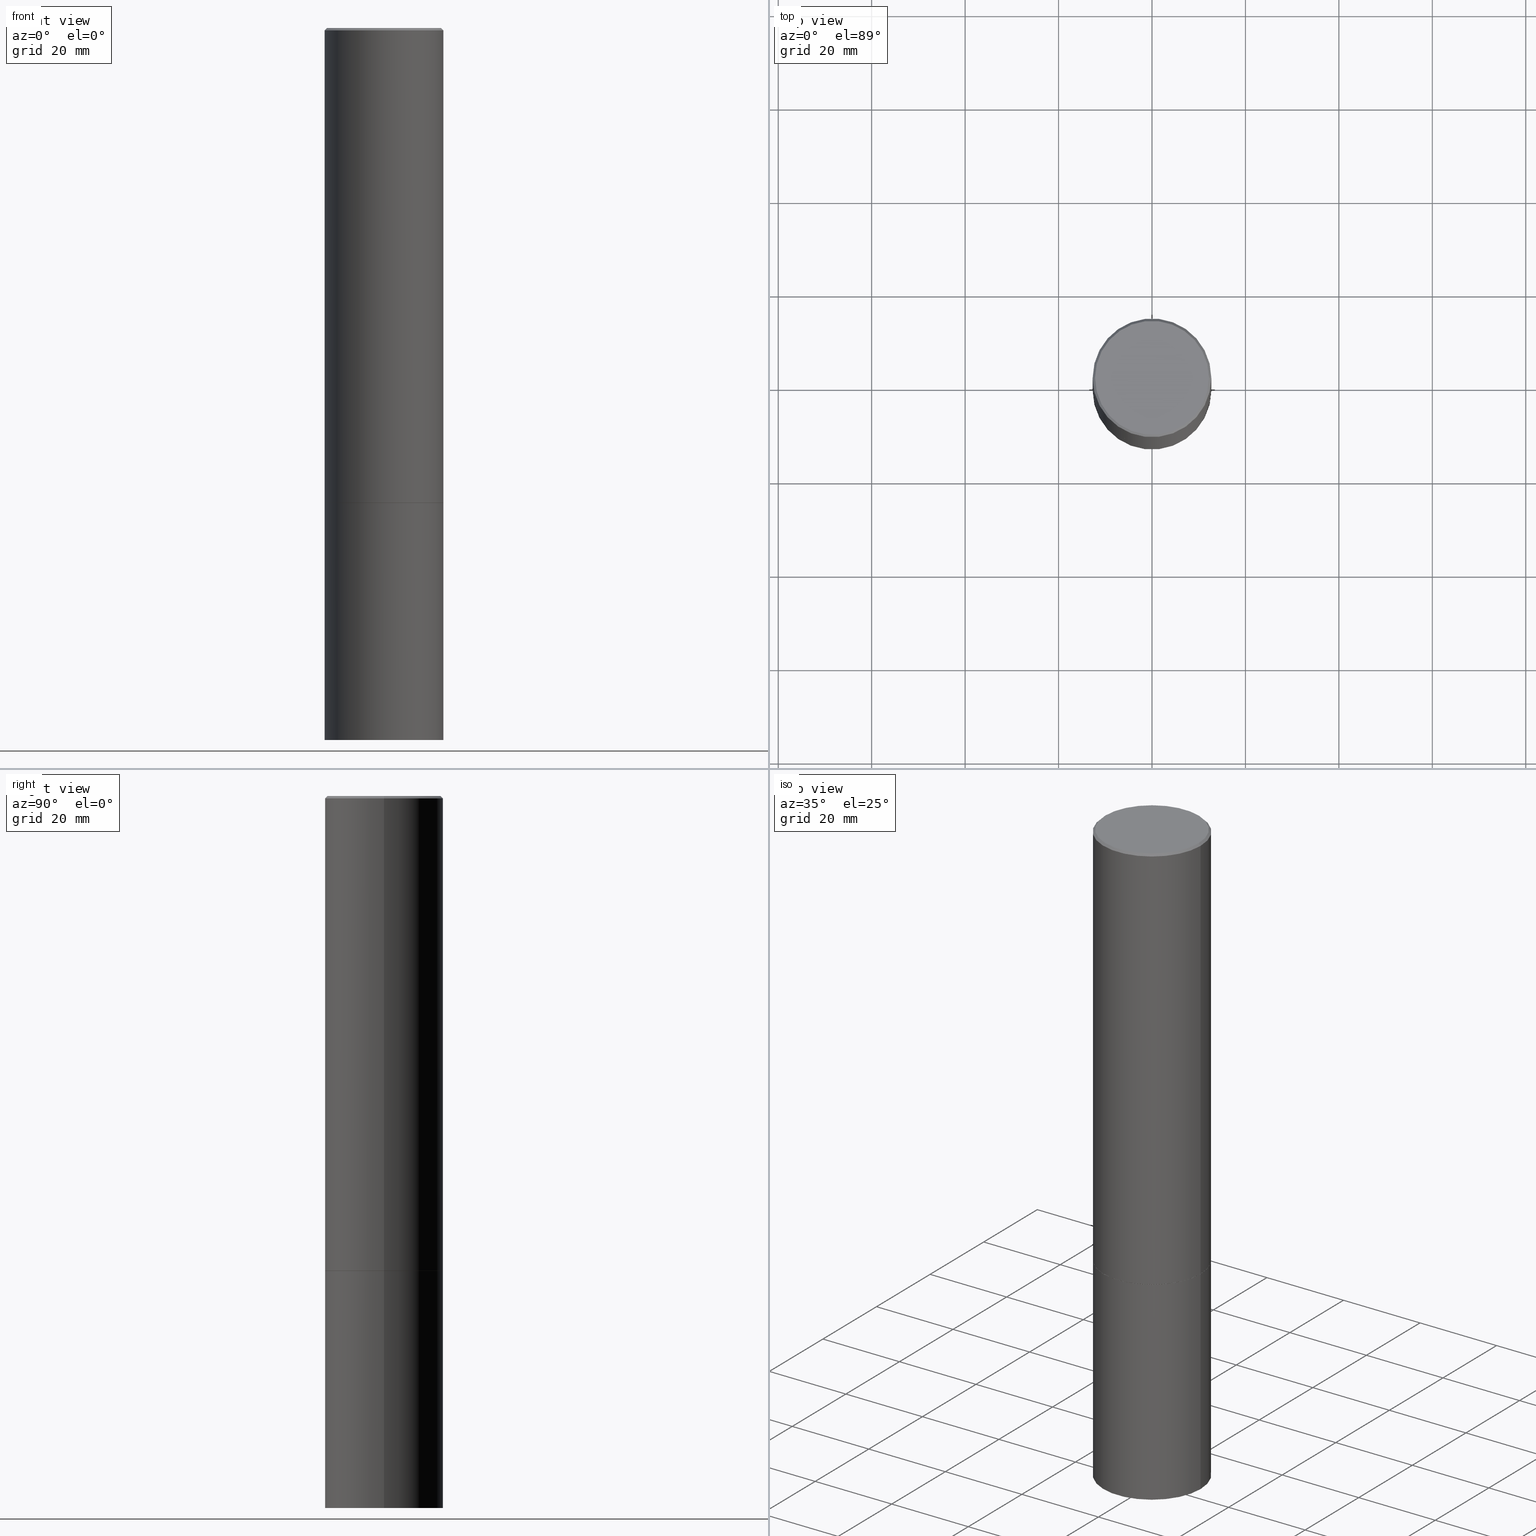
[diagram: canonical four-view strip — front | top / right | iso, engineering-drawing reading convention]
A machine part, canonical four-view strip (front | top / right | iso — engineering-drawing reading convention). The complete STEP part file that produces these views, byte-faithful:
ISO-10303-21;
HEADER;
FILE_DESCRIPTION (( 'STEP AP203' ),
    '1' );
FILE_NAME ('36626.STEP',
    '2024-02-27T19:51:38',
    ( '' ),
    ( '' ),
    'SwSTEP 2.0',
    'SolidWorks 2023',
    '' );
FILE_SCHEMA (( 'CONFIG_CONTROL_DESIGN' ));
ENDSEC;

DATA;
#1 = ORIENTED_EDGE ( 'NONE', *, *, #328, .T. ) ;
#2 = DIRECTION ( 'NONE',  ( 1.000000000000000000, -6.982962677686266711E-15, 0.000000000000000000 ) ) ;
#3 = AXIS2_PLACEMENT_3D ( 'NONE', #16, #9, #227 ) ;
#4 = CIRCLE ( 'NONE', #104, 0.4999999999999995004 ) ;
#5 = APPROVAL_PERSON_ORGANIZATION ( #350, #145, #232 ) ;
#6 = APPLICATION_PROTOCOL_DEFINITION ( 'international standard', 'config_control_design', 1994, #290 ) ;
#7 = CIRCLE ( 'NONE', #313, 0.5000000000000000000 ) ;
#8 = CARTESIAN_POINT ( 'NONE',  ( 0.000000000000000000, 0.000000000000000000, 0.000000000000000000 ) ) ;
#9 = DIRECTION ( 'NONE',  ( -2.445468806185136597E-29, 3.491481338843145583E-15, 1.000000000000000000 ) ) ;
#10 = PERSON_AND_ORGANIZATION_ROLE ( 'design_owner' ) ;
#11 = CARTESIAN_POINT ( 'NONE',  ( 9.781875224740547508E-29, -1.396592535537258391E-14, -4.000000000000000888 ) ) ;
#12 = DIRECTION ( 'NONE',  ( 1.000000000000000000, -6.982962677686266711E-15, 4.876036955247133888E-29 ) ) ;
#13 = EDGE_CURVE ( 'NONE', #52, #155, #196, .T. ) ;
#14 = PERSON_AND_ORGANIZATION ( #206, #296 ) ;
#15 = CARTESIAN_POINT ( 'NONE',  ( 0.4999999999999995004, -3.500078625662625924E-15, -0.02000000000000007327 ) ) ;
#16 = CARTESIAN_POINT ( 'NONE',  ( 4.890937612370290675E-31, -6.982962677686316261E-17, -0.02000000000000007327 ) ) ;
#17 = CLOSED_SHELL ( 'NONE', ( #94, #158, #49, #130 ) ) ;
#18 = EDGE_LOOP ( 'NONE', ( #76, #164 ) ) ;
#19 = CC_DESIGN_DATE_AND_TIME_ASSIGNMENT ( #93, #112, ( #211 ) ) ;
#20 = CYLINDRICAL_SURFACE ( 'NONE', #307, 0.5000000000000000000 ) ;
#21 = SECURITY_CLASSIFICATION_LEVEL ( 'unclassified' ) ;
#22 = COORDINATED_UNIVERSAL_TIME_OFFSET ( 5, 0, .BEHIND. ) ;
#23 = ADVANCED_FACE ( 'NONE', ( #285 ), #249, .T. ) ;
#24 = AXIS2_PLACEMENT_3D ( 'NONE', #192, #224, #81 ) ;
#25 = AXIS2_PLACEMENT_3D ( 'NONE', #231, #270, #87 ) ;
#26 = FACE_OUTER_BOUND ( 'NONE', #278, .T. ) ;
#27 = DIRECTION ( 'NONE',  ( 1.000000000000000000, -6.982962677686266711E-15, 0.000000000000000000 ) ) ;
#28 = CARTESIAN_POINT ( 'NONE',  ( 0.5000000000000000000, -2.444036937190200606E-14, -6.000000000000000888 ) ) ;
#29 = AXIS2_PLACEMENT_3D ( 'NONE', #168, #293, #108 ) ;
#30 = VERTEX_POINT ( 'NONE', #287 ) ;
#31 = VERTEX_POINT ( 'NONE', #129 ) ;
#32 = DIRECTION ( 'NONE',  ( -2.445468806185136877E-29, 3.491481338843145188E-15, 1.000000000000000000 ) ) ;
#33 = CC_DESIGN_PERSON_AND_ORGANIZATION_ASSIGNMENT ( #174, #299, ( #92 ) ) ;
#34 = LINE ( 'NONE', #132, #321 ) ;
#35 = CONICAL_SURFACE ( 'NONE', #29, 0.4999999999999995004, 0.7853981633974459475 ) ;
#36 = LENGTH_MEASURE_WITH_UNIT ( LENGTH_MEASURE( 0.02539999999999999897 ), #191 );
#37 = EDGE_CURVE ( 'NONE', #366, #30, #38, .T. ) ;
#38 = LINE ( 'NONE', #219, #147 ) ;
#39 = FACE_OUTER_BOUND ( 'NONE', #50, .T. ) ;
#40 = VECTOR ( 'NONE', #113, 39.37007874015748143 ) ;
#41 = ORIENTED_EDGE ( 'NONE', *, *, #277, .F. ) ;
#42 = ORIENTED_EDGE ( 'NONE', *, *, #264, .F. ) ;
#43 = FACE_OUTER_BOUND ( 'NONE', #220, .T. ) ;
#44 = DIRECTION ( 'NONE',  ( -2.445468806185136877E-29, 3.491481338843145188E-15, 1.000000000000000000 ) ) ;
#45 = CARTESIAN_POINT ( 'NONE',  ( 0.4989999999999999991, -1.745042373153803125E-14, -4.000000000000000888 ) ) ;
#46 = DIRECTION ( 'NONE',  ( -2.445468806185136597E-29, 3.491481338843145583E-15, 1.000000000000000000 ) ) ;
#47 = CC_DESIGN_APPROVAL ( #91, ( #173 ) ) ;
#48 = VECTOR ( 'NONE', #179, 39.37007874015748143 ) ;
#49 = ADVANCED_FACE ( 'NONE', ( #254 ), #223, .F. ) ;
#50 = EDGE_LOOP ( 'NONE', ( #70, #245 ) ) ;
#51 = EDGE_LOOP ( 'NONE', ( #365, #335, #303, #96 ) ) ;
#52 = VERTEX_POINT ( 'NONE', #135 ) ;
#53 = ORIENTED_EDGE ( 'NONE', *, *, #256, .F. ) ;
#54 = LOCAL_TIME ( 14, 51, 38.00000000000000000, #195 ) ;
#55 = DIRECTION ( 'NONE',  ( -2.445468806185136597E-29, 3.491481338843145583E-15, 1.000000000000000000 ) ) ;
#56 = FACE_OUTER_BOUND ( 'NONE', #61, .T. ) ;
#57 = CC_DESIGN_DATE_AND_TIME_ASSIGNMENT ( #65, #304, ( #173 ) ) ;
#58 = ORIENTED_EDGE ( 'NONE', *, *, #63, .T. ) ;
#59 = AXIS2_PLACEMENT_3D ( 'NONE', #118, #233, #353 ) ;
#60 = EDGE_CURVE ( 'NONE', #80, #30, #103, .T. ) ;
#61 = EDGE_LOOP ( 'NONE', ( #221, #77, #281, #316 ) ) ;
#62 = AXIS2_PLACEMENT_3D ( 'NONE', #160, #55, #295 ) ;
#63 = EDGE_CURVE ( 'NONE', #183, #288, #348, .T. ) ;
#64 = APPROVAL_STATUS ( 'not_yet_approved' ) ;
#65 = DATE_AND_TIME ( #273, #251 ) ;
#66 = LOCAL_TIME ( 14, 51, 38.00000000000000000, #22 ) ;
#67 = DIRECTION ( 'NONE',  ( 2.438088387897960049E-29, -3.491481338843145188E-15, -1.000000000000000000 ) ) ;
#68 = LINE ( 'NONE', #323, #148 ) ;
#69 = CARTESIAN_POINT ( 'NONE',  ( 3.351822085289404392E-15, 0.4799999999999995381, -1.669508273909557670E-15 ) ) ;
#70 = ORIENTED_EDGE ( 'NONE', *, *, #345, .F. ) ;
#71 = CC_DESIGN_PERSON_AND_ORGANIZATION_ASSIGNMENT ( #137, #268, ( #211 ) ) ;
#72 = ORIENTED_EDGE ( 'NONE', *, *, #167, .F. ) ;
#73 = CYLINDRICAL_SURFACE ( 'NONE', #109, 0.4999999999999997224 ) ;
#74 = EDGE_LOOP ( 'NONE', ( #106, #337, #247, #250 ) ) ;
#75 = DIRECTION ( 'NONE',  ( 2.438088387897960049E-29, -3.491481338843145188E-15, -1.000000000000000000 ) ) ;
#76 = ORIENTED_EDGE ( 'NONE', *, *, #292, .F. ) ;
#77 = ORIENTED_EDGE ( 'NONE', *, *, #205, .T. ) ;
#78 = CARTESIAN_POINT ( 'NONE',  ( 9.781875224740549750E-29, -1.396592535537258549E-14, -4.000000000000000888 ) ) ;
#79 = CARTESIAN_POINT ( 'NONE',  ( 0.5000000000000000000, -1.745740669421572042E-14, -4.000000000000000888 ) ) ;
#80 = VERTEX_POINT ( 'NONE', #325 ) ;
#81 = DIRECTION ( 'NONE',  ( 1.000000000000000000, -6.982962677686266711E-15, 4.876036955247133888E-29 ) ) ;
#82 = AXIS2_PLACEMENT_3D ( 'NONE', #123, #244, #12 ) ;
#83 = APPROVAL_ROLE ( '' ) ;
#84 = DIRECTION ( 'NONE',  ( 1.000000000000000000, -6.982962677686266711E-15, 0.000000000000000000 ) ) ;
#85 = AXIS2_PLACEMENT_3D ( 'NONE', #178, #46, #121 ) ;
#86 = EDGE_LOOP ( 'NONE', ( #255, #215, #143, #314 ) ) ;
#87 = DIRECTION ( 'NONE',  ( 1.000000000000000000, -6.982962677686265133E-15, 0.000000000000000000 ) ) ;
#88 = APPROVAL_STATUS ( 'not_yet_approved' ) ;
#89 = DIRECTION ( 'NONE',  ( 0.7071067811870063169, -2.468850131087062801E-15, 0.7071067811860887176 ) ) ;
#90 = LINE ( 'NONE', #45, #187 ) ;
#91 = APPROVAL ( #64, 'UNSPECIFIED' ) ;
#92 = PRODUCT_DEFINITION_FORMATION_WITH_SPECIFIED_SOURCE ( 'ANY', '', #115, .NOT_KNOWN. ) ;
#93 = DATE_AND_TIME ( #327, #98 ) ;
#94 = ADVANCED_FACE ( 'NONE', ( #269 ), #20, .T. ) ;
#95 = DIRECTION ( 'NONE',  ( 1.000000000000000000, -6.982962677686262766E-15, 0.000000000000000000 ) ) ;
#96 = ORIENTED_EDGE ( 'NONE', *, *, #199, .F. ) ;
#97 = DIRECTION ( 'NONE',  ( -2.445468806185136597E-29, 3.491481338843145583E-15, 1.000000000000000000 ) ) ;
#98 = LOCAL_TIME ( 14, 51, 38.00000000000000000, #265 ) ;
#99 = MANIFOLD_SOLID_BREP ( 'Body-Move/Copy2[1]', #17 ) ;
#100 = FACE_OUTER_BOUND ( 'NONE', #51, .T. ) ;
#101 = ORIENTED_EDGE ( 'NONE', *, *, #241, .T. ) ;
#102 = CARTESIAN_POINT ( 'NONE',  ( -0.4989999999999999991, -1.042031710392968320E-14, -4.000000000000000888 ) ) ;
#103 = CIRCLE ( 'NONE', #3, 0.4999999999999995004 ) ;
#104 = AXIS2_PLACEMENT_3D ( 'NONE', #297, #302, #142 ) ;
#105 = DIRECTION ( 'NONE',  ( -2.438088387897960049E-29, 3.491481338843145188E-15, 1.000000000000000000 ) ) ;
#106 = ORIENTED_EDGE ( 'NONE', *, *, #292, .T. ) ;
#107 =( NAMED_UNIT ( * ) PLANE_ANGLE_UNIT ( ) SI_UNIT ( $, .RADIAN. ) );
#108 = DIRECTION ( 'NONE',  ( -1.000000000000000000, 6.982962677686267499E-15, 0.000000000000000000 ) ) ;
#109 = AXIS2_PLACEMENT_3D ( 'NONE', #154, #217, #311 ) ;
#110 = DIRECTION ( 'NONE',  ( 0.000000000000000000, 0.000000000000000000, 1.000000000000000000 ) ) ;
#111 = DIRECTION ( 'NONE',  ( -2.445468806185136597E-29, 3.491481338843145583E-15, 1.000000000000000000 ) ) ;
#112 = DATE_TIME_ROLE ( 'classification_date' ) ;
#113 = DIRECTION ( 'NONE',  ( 0.7071067811865459074, -7.319954787623251312E-15, -0.7071067811865492381 ) ) ;
#114 = CIRCLE ( 'NONE', #139, 0.5000000000000000000 ) ;
#115 = PRODUCT ( '36626', '36626', '', ( #131 ) ) ;
#116 = ADVANCED_FACE ( 'NONE', ( #26 ), #236, .F. ) ;
#117 = APPLICATION_PROTOCOL_DEFINITION ( 'international standard', 'config_control_design', 1994, #218 ) ;
#118 = CARTESIAN_POINT ( 'NONE',  ( 9.781875224740547508E-29, -1.396592535537258391E-14, -4.000000000000000888 ) ) ;
#119 = DIRECTION ( 'NONE',  ( 1.000000000000000000, -6.982962677686266711E-15, 4.876176775795935793E-29 ) ) ;
#120 = CIRCLE ( 'NONE', #226, 0.5000000000000000000 ) ;
#121 = DIRECTION ( 'NONE',  ( 1.000000000000000000, -6.982962677686266711E-15, 4.876176775795935793E-29 ) ) ;
#122 = LINE ( 'NONE', #102, #48 ) ;
#123 = CARTESIAN_POINT ( 'NONE',  ( -3.131554243005659264E-46, 4.471029511141341874E-32, 1.280553747030123384E-17 ) ) ;
#124 = CIRCLE ( 'NONE', #25, 0.4989999999999999991 ) ;
#125 = ORIENTED_EDGE ( 'NONE', *, *, #60, .T. ) ;
#126 = CARTESIAN_POINT ( 'NONE',  ( -0.4999999999999997224, 3.552713678800498957E-15, -2.459467545127451490E-29 ) ) ;
#127 = ORIENTED_EDGE ( 'NONE', *, *, #264, .T. ) ;
#128 = APPROVAL_PERSON_ORGANIZATION ( #322, #134, #201 ) ;
#129 = CARTESIAN_POINT ( 'NONE',  ( -0.4989999999999999991, -1.041501864958146553E-14, -4.000000000000000888 ) ) ;
#130 = ADVANCED_FACE ( 'NONE', ( #100 ), #214, .T. ) ;
#131 = MECHANICAL_CONTEXT ( 'NONE', #290, 'mechanical' ) ;
#132 = CARTESIAN_POINT ( 'NONE',  ( -0.4999999999999995004, 3.421651712066266507E-15, -0.02000000000000007327 ) ) ;
#133 = AXIS2_PLACEMENT_3D ( 'NONE', #331, #305, #27 ) ;
#134 = APPROVAL ( #208, 'UNSPECIFIED' ) ;
#135 = CARTESIAN_POINT ( 'NONE',  ( -0.4799999999999995381, 3.386736898677835647E-15, 1.280553747027767124E-17 ) ) ;
#136 = CARTESIAN_POINT ( 'NONE',  ( 1.467281283711081958E-28, -2.094888803305887271E-14, -6.000000000000000888 ) ) ;
#137 = PERSON_AND_ORGANIZATION ( #206, #296 ) ;
#138 = ORIENTED_EDGE ( 'NONE', *, *, #222, .T. ) ;
#139 = AXIS2_PLACEMENT_3D ( 'NONE', #136, #334, #216 ) ;
#140 = COORDINATED_UNIVERSAL_TIME_OFFSET ( 5, 0, .BEHIND. ) ;
#141 = DIRECTION ( 'NONE',  ( 1.000000000000000000, -6.982962677686265922E-15, 4.876176775795935793E-29 ) ) ;
#142 = DIRECTION ( 'NONE',  ( 1.000000000000000000, -6.982962677686267499E-15, 0.000000000000000000 ) ) ;
#143 = ORIENTED_EDGE ( 'NONE', *, *, #37, .T. ) ;
#144 = PLANE ( 'NONE',  #180 ) ;
#145 = APPROVAL ( #88, 'UNSPECIFIED' ) ;
#146 = DATE_AND_TIME ( #228, #54 ) ;
#147 = VECTOR ( 'NONE', #32, 39.37007874015748143 ) ;
#148 = VECTOR ( 'NONE', #44, 39.37007874015748143 ) ;
#149 = LINE ( 'NONE', #126, #275 ) ;
#150 = CARTESIAN_POINT ( 'NONE',  ( 9.779429755934365268E-29, -1.396243387403374563E-14, -3.999000000000001886 ) ) ;
#151 = VERTEX_POINT ( 'NONE', #357 ) ;
#152 = DIRECTION ( 'NONE',  ( -2.445468806185136597E-29, 3.491481338843145583E-15, 1.000000000000000000 ) ) ;
#153 = ORIENTED_EDGE ( 'NONE', *, *, #361, .F. ) ;
#154 = CARTESIAN_POINT ( 'NONE',  ( 0.000000000000000000, 0.000000000000000000, 0.000000000000000000 ) ) ;
#155 = VERTEX_POINT ( 'NONE', #338 ) ;
#156 = CARTESIAN_POINT ( 'NONE',  ( -0.5000000000000000000, -1.390469301541522896E-14, -6.000000000000000888 ) ) ;
#157 = AXIS2_PLACEMENT_3D ( 'NONE', #294, #105, #141 ) ;
#158 = ADVANCED_FACE ( 'NONE', ( #39 ), #144, .T. ) ;
#159 = UNCERTAINTY_MEASURE_WITH_UNIT (LENGTH_MEASURE( 1.000000000000000082E-05 ), #346, 'distance_accuracy_value', 'NONE');
#160 = CARTESIAN_POINT ( 'NONE',  ( 0.000000000000000000, 0.000000000000000000, 0.000000000000000000 ) ) ;
#161 = ADVANCED_FACE ( 'NONE', ( #360 ), #169, .T. ) ;
#162 =( NAMED_UNIT ( * ) SI_UNIT ( $, .STERADIAN. ) SOLID_ANGLE_UNIT ( ) );
#163 = CARTESIAN_POINT ( 'NONE',  ( 9.779429755934365268E-29, -1.396243387403374563E-14, -3.999000000000001886 ) ) ;
#164 = ORIENTED_EDGE ( 'NONE', *, *, #222, .F. ) ;
#165 = CARTESIAN_POINT ( 'NONE',  ( 0.5000000000000000000, -1.745391521287687899E-14, -3.999000000000001886 ) ) ;
#166 =( GEOMETRIC_REPRESENTATION_CONTEXT ( 3 ) GLOBAL_UNCERTAINTY_ASSIGNED_CONTEXT ( ( #159 ) ) GLOBAL_UNIT_ASSIGNED_CONTEXT ( ( #346, #107, #162 ) ) REPRESENTATION_CONTEXT ( 'NONE', 'WORKASPACE' ) );
#167 = EDGE_CURVE ( 'NONE', #31, #151, #122, .T. ) ;
#168 = CARTESIAN_POINT ( 'NONE',  ( 4.890937612370290675E-31, -6.982962677686316261E-17, -0.02000000000000007327 ) ) ;
#169 = CONICAL_SURFACE ( 'NONE', #197, 0.4999999999999995004, 0.7853981633974459475 ) ;
#170 = DIRECTION ( 'NONE',  ( 1.000000000000000000, -6.982962677686265133E-15, 0.000000000000000000 ) ) ;
#171 = PERSON_AND_ORGANIZATION ( #206, #296 ) ;
#172 = APPROVAL_DATE_TIME ( #355, #134 ) ;
#173 = PRODUCT_DEFINITION ( 'UNKNOWN', '', #92, #326 ) ;
#174 = PERSON_AND_ORGANIZATION ( #206, #296 ) ;
#175 = APPROVAL_PERSON_ORGANIZATION ( #349, #91, #83 ) ;
#176 = PERSON_AND_ORGANIZATION_ROLE ( 'creator' ) ;
#177 = EDGE_CURVE ( 'NONE', #183, #239, #181, .T. ) ;
#178 = CARTESIAN_POINT ( 'NONE',  ( 0.000000000000000000, 0.000000000000000000, 0.000000000000000000 ) ) ;
#179 = DIRECTION ( 'NONE',  ( -0.7071067811870063169, 7.493145998872012346E-15, 0.7071067811860887176 ) ) ;
#180 = AXIS2_PLACEMENT_3D ( 'NONE', #266, #67, #310 ) ;
#181 = CIRCLE ( 'NONE', #243, 0.5000000000000000000 ) ;
#182 = DIRECTION ( 'NONE',  ( -2.445468806185136877E-29, 3.491481338843145188E-15, 1.000000000000000000 ) ) ;
#183 = VERTEX_POINT ( 'NONE', #156 ) ;
#184 = ADVANCED_FACE ( 'NONE', ( #56 ), #73, .T. ) ;
#185 = DIRECTION ( 'NONE',  ( -1.000000000000000000, 6.982962677686267499E-15, 0.000000000000000000 ) ) ;
#186 = CARTESIAN_POINT ( 'NONE',  ( 1.467281283711081958E-28, -2.094888803305887271E-14, -6.000000000000000888 ) ) ;
#187 = VECTOR ( 'NONE', #89, 39.37007874015748143 ) ;
#188 = DIRECTION ( 'NONE',  ( -0.7071067811865459074, 2.468850131082239706E-15, -0.7071067811865492381 ) ) ;
#189 = EDGE_CURVE ( 'NONE', #366, #151, #120, .T. ) ;
#190 = EDGE_LOOP ( 'NONE', ( #340, #127, #1, #153 ) ) ;
#191 =( LENGTH_UNIT ( ) NAMED_UNIT ( * ) SI_UNIT ( $, .METRE. ) );
#192 = CARTESIAN_POINT ( 'NONE',  ( -3.131554243005659264E-46, 4.471029511141341874E-32, 1.280553747030123384E-17 ) ) ;
#193 = AXIS2_PLACEMENT_3D ( 'NONE', #69, #308, #242 ) ;
#194 = PLANE ( 'NONE',  #157 ) ;
#195 = COORDINATED_UNIVERSAL_TIME_OFFSET ( 5, 0, .BEHIND. ) ;
#196 = CIRCLE ( 'NONE', #24, 0.4799999999999995381 ) ;
#197 = AXIS2_PLACEMENT_3D ( 'NONE', #336, #359, #185 ) ;
#198 = COORDINATED_UNIVERSAL_TIME_OFFSET ( 5, 0, .BEHIND. ) ;
#199 = EDGE_CURVE ( 'NONE', #288, #248, #280, .T. ) ;
#200 = APPROVAL_DATE_TIME ( #146, #91 ) ;
#201 = APPROVAL_ROLE ( '' ) ;
#202 = CARTESIAN_POINT ( 'NONE',  ( 0.000000000000000000, 0.000000000000000000, 0.000000000000000000 ) ) ;
#203 = CONICAL_SURFACE ( 'NONE', #317, 0.4989999999999999991, 0.7853981633980972044 ) ;
#204 = CC_DESIGN_SECURITY_CLASSIFICATION ( #211, ( #92 ) ) ;
#205 = EDGE_CURVE ( 'NONE', #151, #80, #149, .T. ) ;
#206 = PERSON ( 'UNSPECIFIED', 'UNSPECIFIED', 'UNSPECIFIED', ('UNSPECIFIED'), ('UNSPECIFIED'), ('UNSPECIFIED') ) ;
#207 = FACE_OUTER_BOUND ( 'NONE', #272, .T. ) ;
#208 = APPROVAL_STATUS ( 'not_yet_approved' ) ;
#209 = LINE ( 'NONE', #15, #40 ) ;
#210 = ORIENTED_EDGE ( 'NONE', *, *, #345, .T. ) ;
#211 = SECURITY_CLASSIFICATION ( '', '', #21 ) ;
#212 = CC_DESIGN_APPROVAL ( #145, ( #211 ) ) ;
#213 = ORIENTED_EDGE ( 'NONE', *, *, #309, .F. ) ;
#214 = CYLINDRICAL_SURFACE ( 'NONE', #85, 0.5000000000000000000 ) ;
#215 = ORIENTED_EDGE ( 'NONE', *, *, #256, .T. ) ;
#216 = DIRECTION ( 'NONE',  ( 1.000000000000000000, -6.982962677686262766E-15, 0.000000000000000000 ) ) ;
#217 = DIRECTION ( 'NONE',  ( -2.445468806185136597E-29, 3.491481338843145583E-15, 1.000000000000000000 ) ) ;
#218 = APPLICATION_CONTEXT ( 'configuration controlled 3d designs of mechanical parts and assemblies' ) ;
#219 = CARTESIAN_POINT ( 'NONE',  ( 0.4999999999999997224, -3.491481338843131383E-15, 2.438088387897966495E-29 ) ) ;
#220 = EDGE_LOOP ( 'NONE', ( #42, #276, #283, #125 ) ) ;
#221 = ORIENTED_EDGE ( 'NONE', *, *, #189, .T. ) ;
#222 = EDGE_CURVE ( 'NONE', #31, #344, #354, .T. ) ;
#223 = PLANE ( 'NONE',  #363 ) ;
#224 = DIRECTION ( 'NONE',  ( -2.445468806185136597E-29, 3.491481338843145583E-15, 1.000000000000000000 ) ) ;
#225 = DIRECTION ( 'NONE',  ( -2.445468806185136597E-29, 3.491481338843145583E-15, 1.000000000000000000 ) ) ;
#226 = AXIS2_PLACEMENT_3D ( 'NONE', #150, #341, #2 ) ;
#227 = DIRECTION ( 'NONE',  ( 1.000000000000000000, -6.982962677686267499E-15, 0.000000000000000000 ) ) ;
#228 = CALENDAR_DATE ( 2024, 27, 2 ) ;
#229 = PRODUCT_RELATED_PRODUCT_CATEGORY ( 'detail', '', ( #115 ) ) ;
#230 = CC_DESIGN_APPROVAL ( #134, ( #92 ) ) ;
#231 = CARTESIAN_POINT ( 'NONE',  ( 9.781875224740547508E-29, -1.396592535537258391E-14, -4.000000000000000888 ) ) ;
#232 = APPROVAL_ROLE ( '' ) ;
#233 = DIRECTION ( 'NONE',  ( -2.445468806185136597E-29, 3.491481338843145583E-15, 1.000000000000000000 ) ) ;
#234 = PERSON_AND_ORGANIZATION ( #206, #296 ) ;
#235 = PRODUCT_DEFINITION_SHAPE ( 'NONE', 'NONE',  #173 ) ;
#236 = PLANE ( 'NONE',  #193 ) ;
#237 = CIRCLE ( 'NONE', #300, 0.5000000000000000000 ) ;
#238 = ORIENTED_EDGE ( 'NONE', *, *, #199, .T. ) ;
#239 = VERTEX_POINT ( 'NONE', #28 ) ;
#240 = DIRECTION ( 'NONE',  ( -2.445468806185136597E-29, 3.491481338843145583E-15, 1.000000000000000000 ) ) ;
#241 = EDGE_CURVE ( 'NONE', #155, #52, #267, .T. ) ;
#242 = DIRECTION ( 'NONE',  ( -1.000000000000000000, 6.982962677686265922E-15, -4.876176775795935793E-29 ) ) ;
#243 = AXIS2_PLACEMENT_3D ( 'NONE', #186, #97, #95 ) ;
#244 = DIRECTION ( 'NONE',  ( -2.445468806185136597E-29, 3.491481338843145583E-15, 1.000000000000000000 ) ) ;
#245 = ORIENTED_EDGE ( 'NONE', *, *, #177, .F. ) ;
#246 = CARTESIAN_POINT ( 'NONE',  ( 9.781875224740547508E-29, -1.396592535537258391E-14, -4.000000000000000888 ) ) ;
#247 = ORIENTED_EDGE ( 'NONE', *, *, #189, .F. ) ;
#248 = VERTEX_POINT ( 'NONE', #79 ) ;
#249 = CYLINDRICAL_SURFACE ( 'NONE', #62, 0.4999999999999997224 ) ;
#250 = ORIENTED_EDGE ( 'NONE', *, *, #315, .F. ) ;
#251 = LOCAL_TIME ( 14, 51, 38.00000000000000000, #140 ) ;
#252 = AXIS2_PLACEMENT_3D ( 'NONE', #246, #240, #279 ) ;
#253 = FACE_OUTER_BOUND ( 'NONE', #18, .T. ) ;
#254 = FACE_OUTER_BOUND ( 'NONE', #358, .T. ) ;
#255 = ORIENTED_EDGE ( 'NONE', *, *, #205, .F. ) ;
#256 = EDGE_CURVE ( 'NONE', #151, #366, #237, .T. ) ;
#257 = DIRECTION ( 'NONE',  ( 1.000000000000000000, 0.000000000000000000, 0.000000000000000000 ) ) ;
#258 = EDGE_LOOP ( 'NONE', ( #210, #58, #41, #213 ) ) ;
#259 = DIRECTION ( 'NONE',  ( -2.445468806185136597E-29, 3.491481338843145583E-15, 1.000000000000000000 ) ) ;
#260 = ORIENTED_EDGE ( 'NONE', *, *, #315, .T. ) ;
#261 = CARTESIAN_POINT ( 'NONE',  ( -0.5000000000000000000, -1.390469301541522896E-14, -4.000000000000000888 ) ) ;
#262 = DIRECTION ( 'NONE',  ( -2.445468806185136877E-29, 3.491481338843145188E-15, 1.000000000000000000 ) ) ;
#263 = ADVANCED_FACE ( 'NONE', ( #253 ), #194, .F. ) ;
#264 = EDGE_CURVE ( 'NONE', #155, #30, #209, .T. ) ;
#265 = COORDINATED_UNIVERSAL_TIME_OFFSET ( 5, 0, .BEHIND. ) ;
#266 = CARTESIAN_POINT ( 'NONE',  ( 3.491481338843279295E-15, 0.4999999999999790168, -6.000000000000002665 ) ) ;
#267 = CIRCLE ( 'NONE', #82, 0.4799999999999995381 ) ;
#268 = PERSON_AND_ORGANIZATION_ROLE ( 'classification_officer' ) ;
#269 = FACE_OUTER_BOUND ( 'NONE', #258, .T. ) ;
#270 = DIRECTION ( 'NONE',  ( -2.445468806185136597E-29, 3.491481338843145583E-15, 1.000000000000000000 ) ) ;
#271 = FACE_OUTER_BOUND ( 'NONE', #74, .T. ) ;
#272 = EDGE_LOOP ( 'NONE', ( #72, #138, #260, #53 ) ) ;
#273 = CALENDAR_DATE ( 2024, 27, 2 ) ;
#274 = ADVANCED_FACE ( 'NONE', ( #43 ), #35, .T. ) ;
#275 = VECTOR ( 'NONE', #182, 39.37007874015748143 ) ;
#276 = ORIENTED_EDGE ( 'NONE', *, *, #13, .F. ) ;
#277 = EDGE_CURVE ( 'NONE', #248, #288, #7, .T. ) ;
#278 = EDGE_LOOP ( 'NONE', ( #312, #101 ) ) ;
#279 = DIRECTION ( 'NONE',  ( 1.000000000000000000, -6.982962677686265133E-15, 0.000000000000000000 ) ) ;
#280 = CIRCLE ( 'NONE', #133, 0.5000000000000000000 ) ;
#281 = ORIENTED_EDGE ( 'NONE', *, *, #328, .F. ) ;
#282 = LOCAL_TIME ( 14, 51, 38.00000000000000000, #198 ) ;
#283 = ORIENTED_EDGE ( 'NONE', *, *, #361, .T. ) ;
#284 = DIRECTION ( 'NONE',  ( -1.000000000000000000, 6.982962677686265922E-15, -4.876176775795935793E-29 ) ) ;
#285 = FACE_OUTER_BOUND ( 'NONE', #86, .T. ) ;
#286 = DIRECTION ( 'NONE',  ( 1.000000000000000000, -6.982962677686266711E-15, 0.000000000000000000 ) ) ;
#287 = CARTESIAN_POINT ( 'NONE',  ( 0.4999999999999995004, -3.500078625662625924E-15, -0.02000000000000007327 ) ) ;
#288 = VERTEX_POINT ( 'NONE', #261 ) ;
#289 = VECTOR ( 'NONE', #262, 39.37007874015748143 ) ;
#290 = APPLICATION_CONTEXT ( 'configuration controlled 3d designs of mechanical parts and assemblies' ) ;
#291 = CONICAL_SURFACE ( 'NONE', #59, 0.4989999999999999991, 0.7853981633980972044 ) ;
#292 = EDGE_CURVE ( 'NONE', #344, #31, #124, .T. ) ;
#293 = DIRECTION ( 'NONE',  ( 2.445468806185136597E-29, -3.491481338843145583E-15, -1.000000000000000000 ) ) ;
#294 = CARTESIAN_POINT ( 'NONE',  ( 9.781875224740549750E-29, -1.396592535537258549E-14, -4.000000000000000888 ) ) ;
#295 = DIRECTION ( 'NONE',  ( 1.000000000000000000, -6.982962677686266711E-15, 4.876176775795935793E-29 ) ) ;
#296 = ORGANIZATION ( 'UNSPECIFIED', 'UNSPECIFIED', '' ) ;
#297 = CARTESIAN_POINT ( 'NONE',  ( 4.890937612370290675E-31, -6.982962677686316261E-17, -0.02000000000000007327 ) ) ;
#298 = CARTESIAN_POINT ( 'NONE',  ( 0.4989999999999999991, -1.745042373153803125E-14, -4.000000000000000888 ) ) ;
#299 = PERSON_AND_ORGANIZATION_ROLE ( 'design_supplier' ) ;
#300 = AXIS2_PLACEMENT_3D ( 'NONE', #163, #225, #286 ) ;
#301 = CC_DESIGN_PERSON_AND_ORGANIZATION_ASSIGNMENT ( #14, #10, ( #115 ) ) ;
#302 = DIRECTION ( 'NONE',  ( -2.445468806185136597E-29, 3.491481338843145583E-15, 1.000000000000000000 ) ) ;
#303 = ORIENTED_EDGE ( 'NONE', *, *, #309, .T. ) ;
#304 = DATE_TIME_ROLE ( 'creation_date' ) ;
#305 = DIRECTION ( 'NONE',  ( -2.445468806185136597E-29, 3.491481338843145583E-15, 1.000000000000000000 ) ) ;
#306 = ORIENTED_EDGE ( 'NONE', *, *, #277, .T. ) ;
#307 = AXIS2_PLACEMENT_3D ( 'NONE', #202, #152, #119 ) ;
#308 = DIRECTION ( 'NONE',  ( 2.438088387897960049E-29, -3.491481338843145188E-15, -1.000000000000000000 ) ) ;
#309 = EDGE_CURVE ( 'NONE', #239, #248, #68, .T. ) ;
#310 = DIRECTION ( 'NONE',  ( -1.000000000000000000, 6.982962677686265922E-15, -4.876176775795935793E-29 ) ) ;
#311 = DIRECTION ( 'NONE',  ( 1.000000000000000000, -6.982962677686266711E-15, 4.876176775795935793E-29 ) ) ;
#312 = ORIENTED_EDGE ( 'NONE', *, *, #13, .T. ) ;
#313 = AXIS2_PLACEMENT_3D ( 'NONE', #78, #259, #84 ) ;
#314 = ORIENTED_EDGE ( 'NONE', *, *, #60, .F. ) ;
#315 = EDGE_CURVE ( 'NONE', #344, #366, #90, .T. ) ;
#316 = ORIENTED_EDGE ( 'NONE', *, *, #37, .F. ) ;
#317 = AXIS2_PLACEMENT_3D ( 'NONE', #11, #111, #170 ) ;
#318 = ADVANCED_BREP_SHAPE_REPRESENTATION ( '36626', ( #99, #347, #364 ), #166 ) ;
#319 = CC_DESIGN_PERSON_AND_ORGANIZATION_ASSIGNMENT ( #234, #176, ( #173 ) ) ;
#320 = CLOSED_SHELL ( 'NONE', ( #332, #184, #161, #274, #23, #339, #263, #116 ) ) ;
#321 = VECTOR ( 'NONE', #188, 39.37007874015748143 ) ;
#322 = PERSON_AND_ORGANIZATION ( #206, #296 ) ;
#323 = CARTESIAN_POINT ( 'NONE',  ( 0.5000000000000000000, -3.491481338843133355E-15, 2.438088387897967896E-29 ) ) ;
#324 = CALENDAR_DATE ( 2024, 27, 2 ) ;
#325 = CARTESIAN_POINT ( 'NONE',  ( -0.4999999999999995004, 3.421651712066266507E-15, -0.02000000000000007327 ) ) ;
#326 = DESIGN_CONTEXT ( 'detailed design', #218, 'design' ) ;
#327 = CALENDAR_DATE ( 2024, 27, 2 ) ;
#328 = EDGE_CURVE ( 'NONE', #30, #80, #4, .T. ) ;
#329 = CALENDAR_DATE ( 2024, 27, 2 ) ;
#330 = PERSON_AND_ORGANIZATION_ROLE ( 'creator' ) ;
#331 = CARTESIAN_POINT ( 'NONE',  ( 9.781875224740549750E-29, -1.396592535537258549E-14, -4.000000000000000888 ) ) ;
#332 = ADVANCED_FACE ( 'NONE', ( #271 ), #291, .T. ) ;
#333 = APPROVAL_DATE_TIME ( #352, #145 ) ;
#334 = DIRECTION ( 'NONE',  ( -2.445468806185136597E-29, 3.491481338843145583E-15, 1.000000000000000000 ) ) ;
#335 = ORIENTED_EDGE ( 'NONE', *, *, #177, .T. ) ;
#336 = CARTESIAN_POINT ( 'NONE',  ( 4.890937612370290675E-31, -6.982962677686316261E-17, -0.02000000000000007327 ) ) ;
#337 = ORIENTED_EDGE ( 'NONE', *, *, #167, .T. ) ;
#338 = CARTESIAN_POINT ( 'NONE',  ( 0.4799999999999995381, -3.396558832296479338E-15, 1.280553747032483033E-17 ) ) ;
#339 = ADVANCED_FACE ( 'NONE', ( #207 ), #203, .T. ) ;
#340 = ORIENTED_EDGE ( 'NONE', *, *, #241, .F. ) ;
#341 = DIRECTION ( 'NONE',  ( -2.445468806185136597E-29, 3.491481338843145583E-15, 1.000000000000000000 ) ) ;
#342 = CARTESIAN_POINT ( 'NONE',  ( 3.491481338843230780E-15, 0.4999999999999860667, -4.000000000000002665 ) ) ;
#343 = DIMENSIONAL_EXPONENTS ( 1.000000000000000000, 0.000000000000000000, 0.000000000000000000, 0.000000000000000000, 0.000000000000000000, 0.000000000000000000, 0.000000000000000000 ) ;
#344 = VERTEX_POINT ( 'NONE', #298 ) ;
#345 = EDGE_CURVE ( 'NONE', #239, #183, #114, .T. ) ;
#346 =( CONVERSION_BASED_UNIT ( 'INCH', #36 ) LENGTH_UNIT ( ) NAMED_UNIT ( #343 ) );
#347 = MANIFOLD_SOLID_BREP ( 'Body-Move/Copy2[2]', #320 ) ;
#348 = LINE ( 'NONE', #351, #289 ) ;
#349 = PERSON_AND_ORGANIZATION ( #206, #296 ) ;
#350 = PERSON_AND_ORGANIZATION ( #206, #296 ) ;
#351 = CARTESIAN_POINT ( 'NONE',  ( -0.5000000000000000000, 3.552713678800500929E-15, -2.459467545127452891E-29 ) ) ;
#352 = DATE_AND_TIME ( #324, #282 ) ;
#353 = DIRECTION ( 'NONE',  ( 1.000000000000000000, -6.982962677686265133E-15, 0.000000000000000000 ) ) ;
#354 = CIRCLE ( 'NONE', #252, 0.4989999999999999991 ) ;
#355 = DATE_AND_TIME ( #329, #66 ) ;
#356 = CC_DESIGN_PERSON_AND_ORGANIZATION_ASSIGNMENT ( #171, #330, ( #92 ) ) ;
#357 = CARTESIAN_POINT ( 'NONE',  ( -0.4999999999999999445, -3.463418071604800381E-15, -3.999000000000001886 ) ) ;
#358 = EDGE_LOOP ( 'NONE', ( #306, #238 ) ) ;
#359 = DIRECTION ( 'NONE',  ( 2.445468806185136597E-29, -3.491481338843145583E-15, -1.000000000000000000 ) ) ;
#360 = FACE_OUTER_BOUND ( 'NONE', #190, .T. ) ;
#361 = EDGE_CURVE ( 'NONE', #52, #80, #34, .T. ) ;
#362 = SHAPE_DEFINITION_REPRESENTATION ( #235, #318 ) ;
#363 = AXIS2_PLACEMENT_3D ( 'NONE', #342, #75, #284 ) ;
#364 = AXIS2_PLACEMENT_3D ( 'NONE', #8, #110, #257 ) ;
#365 = ORIENTED_EDGE ( 'NONE', *, *, #63, .F. ) ;
#366 = VERTEX_POINT ( 'NONE', #165 ) ;
ENDSEC;
END-ISO-10303-21;
